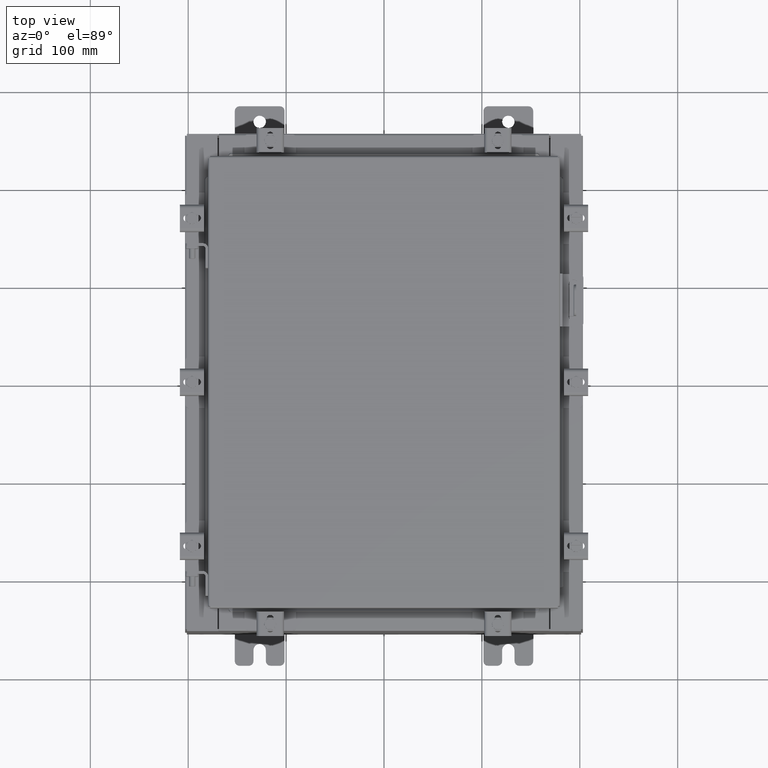
[diagram: clean part render]
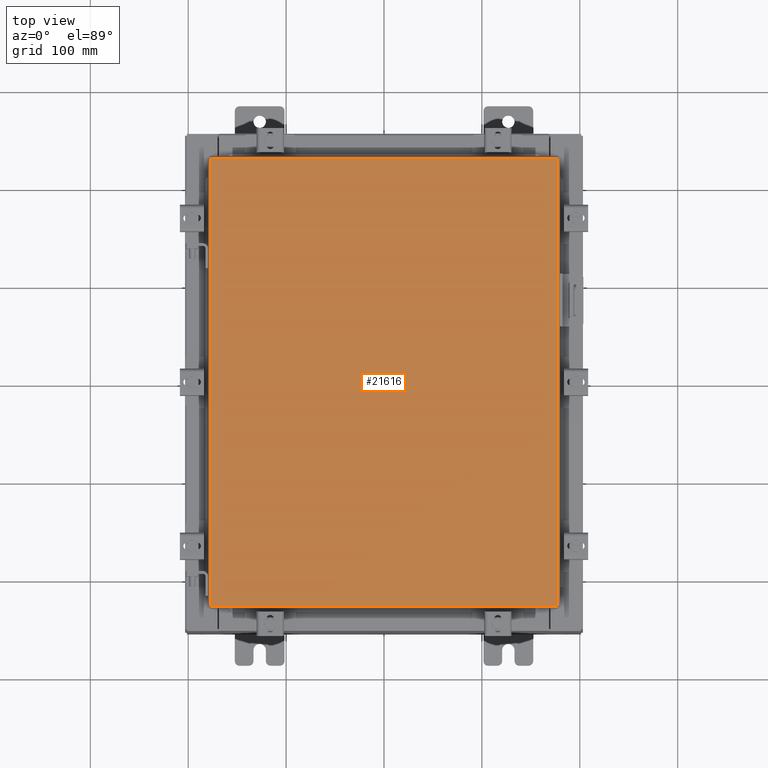
[diagram: same view with one face highlighted and labeled with its STEP entity id]
A machine part, top view. The second image highlights one B-rep face of the part: STEP entity #21616.
In plain terms, the highlighted planar face has unit normal (0, 0, -1).
Its self-contained STEP definition (entity closure, byte-faithful):
#149 = ORIENTED_EDGE ( 'NONE', *, *, #17283, .T. ) ;
#1423 = DIRECTION ( 'NONE',  ( 0.0000000000000000000, 0.0000000000000000000, -1.000000000000000000 ) ) ;
#1674 = LINE ( 'NONE', #16734, #5730 ) ;
#1901 = FACE_OUTER_BOUND ( 'NONE', #21410, .T. ) ;
#2366 = CARTESIAN_POINT ( 'NONE',  ( 6.990299999999996800, -9.006300000000003100, 3.414809992080329000E-016 ) ) ;
#2369 = VERTEX_POINT ( 'NONE', #21080 ) ;
#3054 = LINE ( 'NONE', #21360, #7125 ) ;
#3276 = LINE ( 'NONE', #7511, #12013 ) ;
#3888 = ORIENTED_EDGE ( 'NONE', *, *, #19178, .T. ) ;
#4344 = ORIENTED_EDGE ( 'NONE', *, *, #14528, .T. ) ;
#5693 = DIRECTION ( 'NONE',  ( 0.0000000000000000000, 1.000000000000000000, 0.0000000000000000000 ) ) ;
#5730 = VECTOR ( 'NONE', #9817, 39.37007874015748100 ) ;
#6432 = CARTESIAN_POINT ( 'NONE',  ( 6.990299999999996800, 9.006299999999996000, 3.414809992080329000E-016 ) ) ;
#6506 = DIRECTION ( 'NONE',  ( -1.000000000000000000, -0.0000000000000000000, -0.0000000000000000000 ) ) ;
#6831 = VECTOR ( 'NONE', #6506, 39.37007874015748100 ) ;
#7125 = VECTOR ( 'NONE', #5693, 39.37007874015748100 ) ;
#7511 = CARTESIAN_POINT ( 'NONE',  ( -6.990300000000003100, 9.006299999999996000, -2.048885995248197400E-016 ) ) ;
#9603 = ORIENTED_EDGE ( 'NONE', *, *, #19948, .T. ) ;
#9817 = DIRECTION ( 'NONE',  ( 1.000000000000000000, -0.0000000000000000000, -0.0000000000000000000 ) ) ;
#10997 = VERTEX_POINT ( 'NONE', #21829 ) ;
#11838 = CARTESIAN_POINT ( 'NONE',  ( 0.0000000000000000000, 0.0000000000000000000, 0.0000000000000000000 ) ) ;
#12013 = VECTOR ( 'NONE', #18011, 39.37007874015748100 ) ;
#12021 = LINE ( 'NONE', #6432, #6831 ) ;
#13340 = VERTEX_POINT ( 'NONE', #14944 ) ;
#13552 = DIRECTION ( 'NONE',  ( -1.000000000000000000, 0.0000000000000000000, -0.0000000000000000000 ) ) ;
#14502 = AXIS2_PLACEMENT_3D ( 'NONE', #11838, #1423, #13552 ) ;
#14528 = EDGE_CURVE ( 'NONE', #2369, #13340, #3276, .T. ) ;
#14944 = CARTESIAN_POINT ( 'NONE',  ( -6.990300000000003100, -9.006300000000003100, -2.048885995248197400E-016 ) ) ;
#16734 = CARTESIAN_POINT ( 'NONE',  ( -6.990300000000003100, -9.006300000000003100, -2.048885995248197400E-016 ) ) ;
#17283 = EDGE_CURVE ( 'NONE', #13340, #21952, #1674, .T. ) ;
#18011 = DIRECTION ( 'NONE',  ( 0.0000000000000000000, -1.000000000000000000, 0.0000000000000000000 ) ) ;
#19178 = EDGE_CURVE ( 'NONE', #21952, #10997, #3054, .T. ) ;
#19948 = EDGE_CURVE ( 'NONE', #10997, #2369, #12021, .T. ) ;
#21080 = CARTESIAN_POINT ( 'NONE',  ( -6.990300000000003100, 9.006299999999996000, -2.048885995248197400E-016 ) ) ;
#21360 = CARTESIAN_POINT ( 'NONE',  ( 6.990299999999996800, -9.006300000000003100, 3.414809992080329000E-016 ) ) ;
#21410 = EDGE_LOOP ( 'NONE', ( #149, #3888, #9603, #4344 ) ) ;
#21616 = ADVANCED_FACE ( 'NONE', ( #1901 ), #22224, .F. ) ;
#21829 = CARTESIAN_POINT ( 'NONE',  ( 6.990299999999996800, 9.006299999999996000, 3.414809992080329000E-016 ) ) ;
#21952 = VERTEX_POINT ( 'NONE', #2366 ) ;
#22224 = PLANE ( 'NONE',  #14502 ) ;